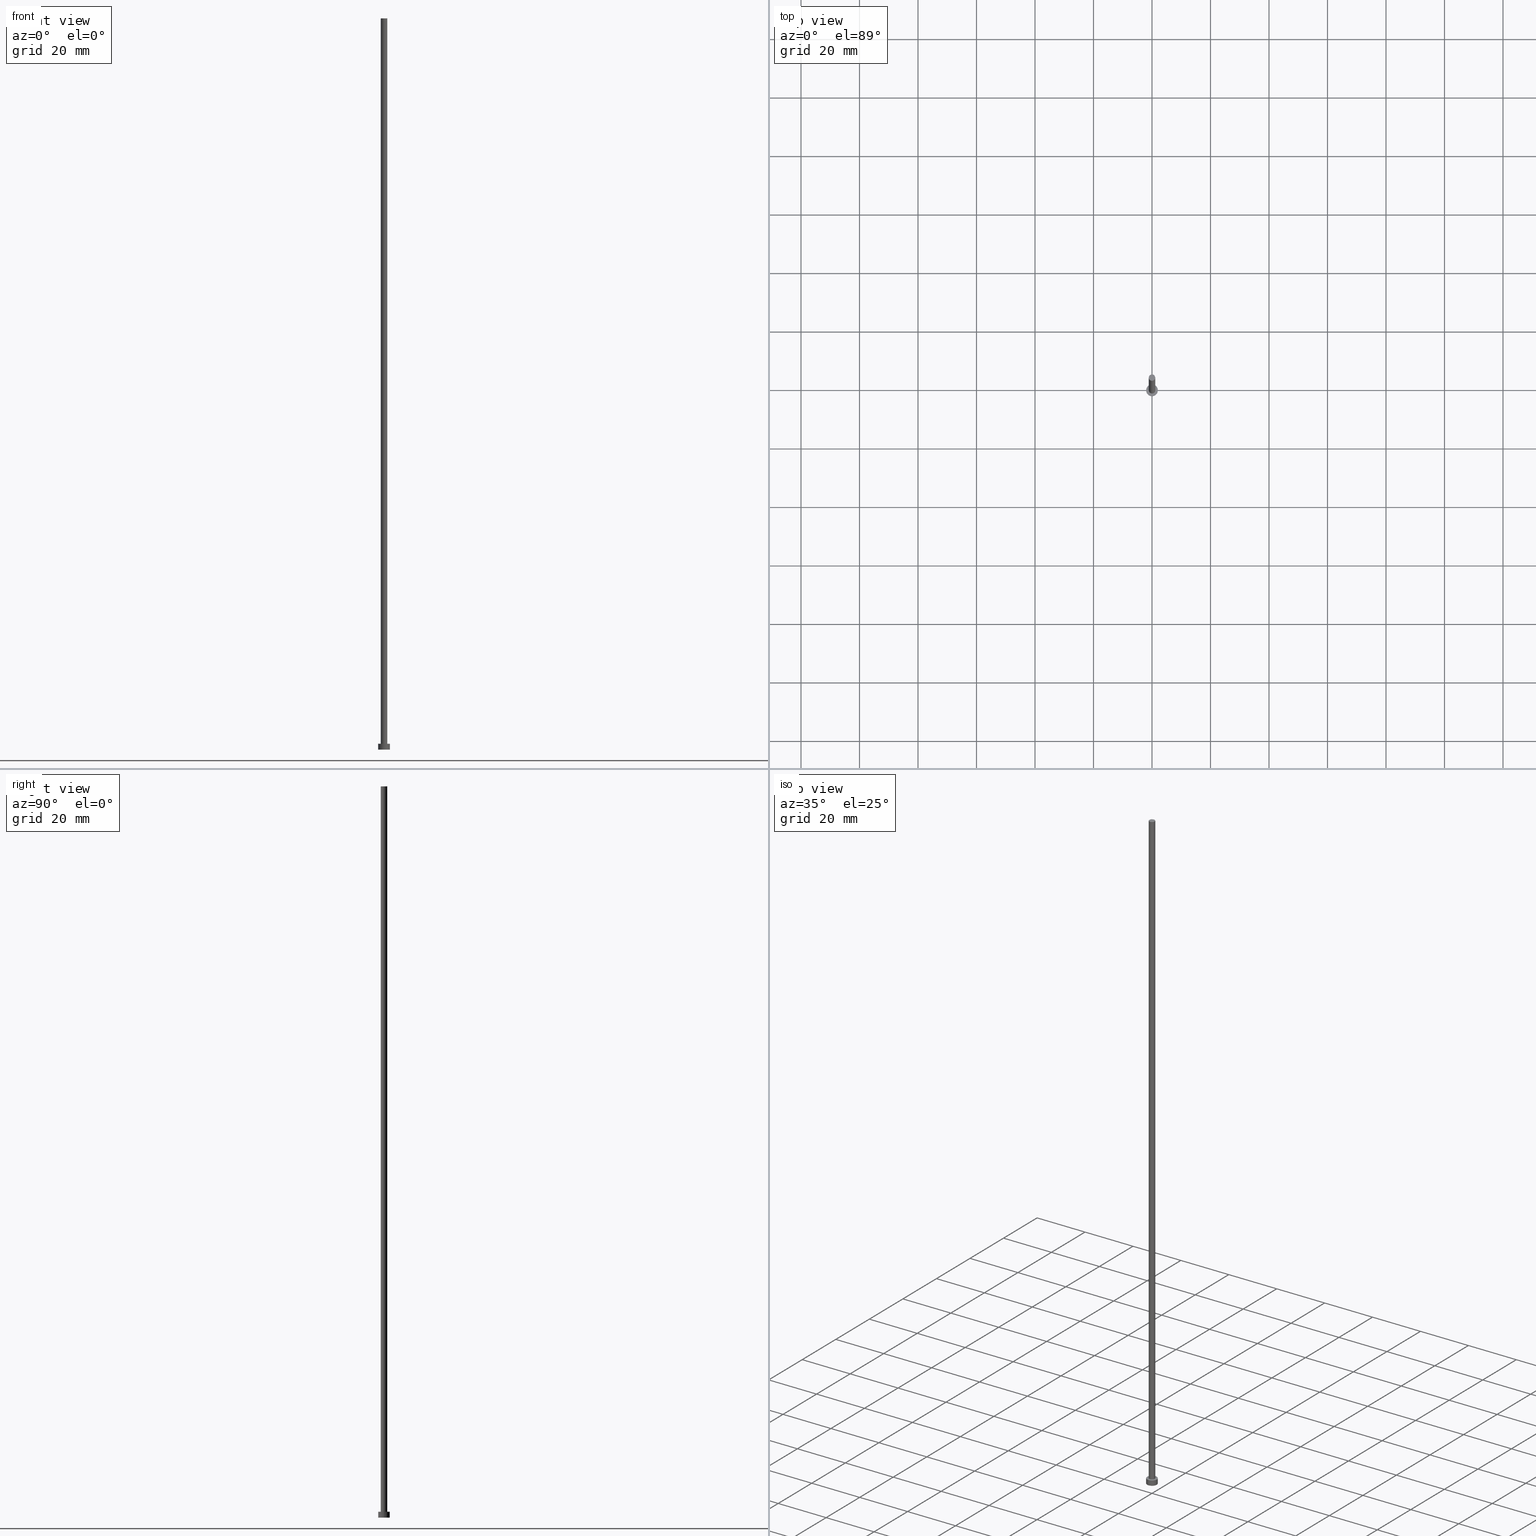
[diagram: canonical four-view strip — front | top / right | iso, engineering-drawing reading convention]
A machine part, canonical four-view strip (front | top / right | iso — engineering-drawing reading convention). The complete STEP part file that produces these views, byte-faithful:
ISO-10303-21;
HEADER;
FILE_DESCRIPTION (( 'STEP AP203' ),
    '1' );
FILE_NAME ('8b87.STEP',
    '2023-02-12T12:21:49',
    ( '' ),
    ( '' ),
    'SwSTEP 2.0',
    'SolidWorks 2019',
    '' );
FILE_SCHEMA (( 'CONFIG_CONTROL_DESIGN' ));
ENDSEC;

DATA;
#1 = ORIENTED_EDGE ( 'NONE', *, *, #101, .F. ) ;
#2 = CIRCLE ( 'NONE', #180, 1.100000000000000089 ) ;
#3 = CC_DESIGN_PERSON_AND_ORGANIZATION_ASSIGNMENT ( #254, #59, ( #44 ) ) ;
#4 = APPROVAL_DATE_TIME ( #191, #166 ) ;
#5 = DIRECTION ( 'NONE',  ( -0.000000000000000000, -0.000000000000000000, -1.000000000000000000 ) ) ;
#6 = CYLINDRICAL_SURFACE ( 'NONE', #209, 1.100000000000000089 ) ;
#7 = AXIS2_PLACEMENT_3D ( 'NONE', #138, #176, #218 ) ;
#8 = FACE_BOUND ( 'NONE', #20, .T. ) ;
#9 = ADVANCED_FACE ( 'NONE', ( #22 ), #208, .T. ) ;
#10 = DIRECTION ( 'NONE',  ( 0.000000000000000000, 0.000000000000000000, 1.000000000000000000 ) ) ;
#11 = DIRECTION ( 'NONE',  ( -1.000000000000000000, 0.000000000000000000, 0.000000000000000000 ) ) ;
#12 = CARTESIAN_POINT ( 'NONE',  ( 0.000000000000000000, 0.000000000000000000, 0.000000000000000000 ) ) ;
#13 = APPROVAL_STATUS ( 'not_yet_approved' ) ;
#14 = COORDINATED_UNIVERSAL_TIME_OFFSET ( 1, 0, .AHEAD. ) ;
#15 = CC_DESIGN_PERSON_AND_ORGANIZATION_ASSIGNMENT ( #235, #50, ( #175 ) ) ;
#16 = DIRECTION ( 'NONE',  ( 0.000000000000000000, 0.000000000000000000, 1.000000000000000000 ) ) ;
#17 = AXIS2_PLACEMENT_3D ( 'NONE', #143, #99, #164 ) ;
#18 = MECHANICAL_CONTEXT ( 'NONE', #69, 'mechanical' ) ;
#19 = VERTEX_POINT ( 'NONE', #109 ) ;
#20 = EDGE_LOOP ( 'NONE', ( #106, #224 ) ) ;
#21 = EDGE_LOOP ( 'NONE', ( #87, #64, #128, #108 ) ) ;
#22 = FACE_OUTER_BOUND ( 'NONE', #41, .T. ) ;
#23 = CIRCLE ( 'NONE', #179, 2.000000000000000000 ) ;
#24 = DIRECTION ( 'NONE',  ( 1.000000000000000000, 0.000000000000000000, -0.000000000000000000 ) ) ;
#25 = AXIS2_PLACEMENT_3D ( 'NONE', #12, #233, #161 ) ;
#26 = DIRECTION ( 'NONE',  ( -0.000000000000000000, -0.000000000000000000, -1.000000000000000000 ) ) ;
#27 = CARTESIAN_POINT ( 'NONE',  ( 0.000000000000000000, 0.000000000000000000, 2.000000000000000000 ) ) ;
#28 = PERSON_AND_ORGANIZATION_ROLE ( 'classification_officer' ) ;
#29 = DIRECTION ( 'NONE',  ( -0.000000000000000000, -0.000000000000000000, -1.000000000000000000 ) ) ;
#30 = DIRECTION ( 'NONE',  ( 1.000000000000000000, 0.000000000000000000, -0.000000000000000000 ) ) ;
#31 = DIRECTION ( 'NONE',  ( 0.000000000000000000, 0.000000000000000000, 1.000000000000000000 ) ) ;
#32 = CARTESIAN_POINT ( 'NONE',  ( -1.100000000000000089, 0.000000000000000000, 2.000000000000000000 ) ) ;
#33 = APPROVAL_ROLE ( '' ) ;
#34 = DATE_AND_TIME ( #219, #56 ) ;
#35 = PERSON_AND_ORGANIZATION ( #184, #225 ) ;
#36 = AXIS2_PLACEMENT_3D ( 'NONE', #125, #223, #24 ) ;
#37 = COORDINATED_UNIVERSAL_TIME_OFFSET ( 1, 0, .AHEAD. ) ;
#38 = VERTEX_POINT ( 'NONE', #188 ) ;
#39 = VERTEX_POINT ( 'NONE', #111 ) ;
#40 = EDGE_CURVE ( 'NONE', #203, #19, #156, .T. ) ;
#41 = EDGE_LOOP ( 'NONE', ( #85, #130 ) ) ;
#42 = AXIS2_PLACEMENT_3D ( 'NONE', #153, #231, #97 ) ;
#43 = DIRECTION ( 'NONE',  ( 1.000000000000000000, 0.000000000000000000, 0.000000000000000000 ) ) ;
#44 = PRODUCT_DEFINITION_FORMATION_WITH_SPECIFIED_SOURCE ( 'LIBOVOLN�', '', #100, .NOT_KNOWN. ) ;
#45 = CARTESIAN_POINT ( 'NONE',  ( 0.000000000000000000, 0.000000000000000000, 2.000000000000000000 ) ) ;
#46 = DIRECTION ( 'NONE',  ( -0.000000000000000000, -0.000000000000000000, -1.000000000000000000 ) ) ;
#47 = COORDINATED_UNIVERSAL_TIME_OFFSET ( 1, 0, .AHEAD. ) ;
#48 = CARTESIAN_POINT ( 'NONE',  ( 0.000000000000000000, 0.000000000000000000, 250.0000000000000000 ) ) ;
#49 = CARTESIAN_POINT ( 'NONE',  ( 0.000000000000000000, 0.000000000000000000, 0.000000000000000000 ) ) ;
#50 = PERSON_AND_ORGANIZATION_ROLE ( 'creator' ) ;
#51 = VECTOR ( 'NONE', #66, 1000.000000000000000 ) ;
#52 = LOCAL_TIME ( 13, 21, 49.00000000000000000, #47 ) ;
#53 = DIRECTION ( 'NONE',  ( -1.000000000000000000, 0.000000000000000000, 0.000000000000000000 ) ) ;
#54 = VECTOR ( 'NONE', #5, 1000.000000000000000 ) ;
#55 = ADVANCED_BREP_SHAPE_REPRESENTATION ( '8b87', ( #177, #25 ), #247 ) ;
#56 = LOCAL_TIME ( 13, 21, 49.00000000000000000, #139 ) ;
#57 = EDGE_CURVE ( 'NONE', #203, #151, #189, .T. ) ;
#58 = VERTEX_POINT ( 'NONE', #118 ) ;
#59 = PERSON_AND_ORGANIZATION_ROLE ( 'design_supplier' ) ;
#60 = EDGE_LOOP ( 'NONE', ( #227, #255, #237, #187 ) ) ;
#61 = APPROVAL_PERSON_ORGANIZATION ( #78, #250, #33 ) ;
#62 = EDGE_CURVE ( 'NONE', #151, #203, #221, .T. ) ;
#63 = ORIENTED_EDGE ( 'NONE', *, *, #252, .T. ) ;
#64 = ORIENTED_EDGE ( 'NONE', *, *, #212, .F. ) ;
#65 = SECURITY_CLASSIFICATION_LEVEL ( 'unclassified' ) ;
#66 = DIRECTION ( 'NONE',  ( -0.000000000000000000, -0.000000000000000000, -1.000000000000000000 ) ) ;
#67 = VECTOR ( 'NONE', #26, 1000.000000000000000 ) ;
#68 = CALENDAR_DATE ( 2023, 12, 2 ) ;
#69 = APPLICATION_CONTEXT ( 'configuration controlled 3d designs of mechanical parts and assemblies' ) ;
#70 = CARTESIAN_POINT ( 'NONE',  ( 0.000000000000000000, 0.000000000000000000, 250.0000000000000000 ) ) ;
#71 = LOCAL_TIME ( 13, 21, 49.00000000000000000, #171 ) ;
#72 = EDGE_CURVE ( 'NONE', #84, #238, #113, .T. ) ;
#73 = PERSON_AND_ORGANIZATION ( #184, #225 ) ;
#74 = CARTESIAN_POINT ( 'NONE',  ( -1.100000000000000089, 0.000000000000000000, 250.0000000000000000 ) ) ;
#75 = CARTESIAN_POINT ( 'NONE',  ( 0.000000000000000000, 0.000000000000000000, 2.000000000000000000 ) ) ;
#76 = DIRECTION ( 'NONE',  ( 0.000000000000000000, 0.000000000000000000, 1.000000000000000000 ) ) ;
#77 = EDGE_CURVE ( 'NONE', #58, #39, #211, .T. ) ;
#78 = PERSON_AND_ORGANIZATION ( #184, #225 ) ;
#79 = SHAPE_DEFINITION_REPRESENTATION ( #196, #55 ) ;
#80 = APPROVAL_STATUS ( 'not_yet_approved' ) ;
#81 = EDGE_CURVE ( 'NONE', #19, #38, #23, .T. ) ;
#82 =( NAMED_UNIT ( * ) SI_UNIT ( $, .STERADIAN. ) SOLID_ANGLE_UNIT ( ) );
#83 = APPLICATION_CONTEXT ( 'configuration controlled 3d designs of mechanical parts and assemblies' ) ;
#84 = VERTEX_POINT ( 'NONE', #200 ) ;
#85 = ORIENTED_EDGE ( 'NONE', *, *, #212, .T. ) ;
#86 = APPROVAL ( #13, 'NEUR�EN�' ) ;
#87 = ORIENTED_EDGE ( 'NONE', *, *, #77, .F. ) ;
#88 = DIRECTION ( 'NONE',  ( 0.000000000000000000, 0.000000000000000000, 1.000000000000000000 ) ) ;
#89 = CC_DESIGN_PERSON_AND_ORGANIZATION_ASSIGNMENT ( #152, #253, ( #44 ) ) ;
#90 = APPROVAL_PERSON_ORGANIZATION ( #201, #86, #120 ) ;
#91 = DIRECTION ( 'NONE',  ( 1.000000000000000000, 0.000000000000000000, 0.000000000000000000 ) ) ;
#92 = PLANE ( 'NONE',  #210 ) ;
#93 = DESIGN_CONTEXT ( 'detailed design', #83, 'design' ) ;
#94 = CALENDAR_DATE ( 2023, 12, 2 ) ;
#95 = ADVANCED_FACE ( 'NONE', ( #114 ), #6, .T. ) ;
#96 = DIRECTION ( 'NONE',  ( -1.000000000000000000, 0.000000000000000000, 0.000000000000000000 ) ) ;
#97 = DIRECTION ( 'NONE',  ( 1.000000000000000000, 0.000000000000000000, 0.000000000000000000 ) ) ;
#98 = CALENDAR_DATE ( 2023, 12, 2 ) ;
#99 = DIRECTION ( 'NONE',  ( 0.000000000000000000, 0.000000000000000000, 1.000000000000000000 ) ) ;
#100 = PRODUCT ( '8b87', '8b87', '', ( #18 ) ) ;
#101 = EDGE_CURVE ( 'NONE', #151, #38, #243, .T. ) ;
#102 = CALENDAR_DATE ( 2023, 12, 2 ) ;
#103 = AXIS2_PLACEMENT_3D ( 'NONE', #48, #76, #137 ) ;
#104 = DATE_AND_TIME ( #98, #162 ) ;
#105 = ADVANCED_FACE ( 'NONE', ( #135 ), #245, .T. ) ;
#106 = ORIENTED_EDGE ( 'NONE', *, *, #122, .F. ) ;
#107 = ORIENTED_EDGE ( 'NONE', *, *, #81, .T. ) ;
#108 = ORIENTED_EDGE ( 'NONE', *, *, #122, .T. ) ;
#109 = CARTESIAN_POINT ( 'NONE',  ( -2.000000000000000000, 0.000000000000000000, 0.000000000000000000 ) ) ;
#110 = AXIS2_PLACEMENT_3D ( 'NONE', #45, #31, #230 ) ;
#111 = CARTESIAN_POINT ( 'NONE',  ( 1.100000000000000089, 1.347111479062088503E-16, 2.000000000000000000 ) ) ;
#112 = CC_DESIGN_DATE_AND_TIME_ASSIGNMENT ( #34, #119, ( #175 ) ) ;
#113 = LINE ( 'NONE', #74, #51 ) ;
#114 = FACE_OUTER_BOUND ( 'NONE', #168, .T. ) ;
#115 = CARTESIAN_POINT ( 'NONE',  ( 0.000000000000000000, 0.000000000000000000, 250.0000000000000000 ) ) ;
#116 = EDGE_CURVE ( 'NONE', #58, #84, #2, .T. ) ;
#117 = DATE_TIME_ROLE ( 'classification_date' ) ;
#118 = CARTESIAN_POINT ( 'NONE',  ( 1.100000000000000089, 1.347111479062088503E-16, 250.0000000000000000 ) ) ;
#119 = DATE_TIME_ROLE ( 'creation_date' ) ;
#120 = APPROVAL_ROLE ( '' ) ;
#121 = PLANE ( 'NONE',  #17 ) ;
#122 = EDGE_CURVE ( 'NONE', #238, #39, #131, .T. ) ;
#123 = AXIS2_PLACEMENT_3D ( 'NONE', #145, #16, #124 ) ;
#124 = DIRECTION ( 'NONE',  ( 1.000000000000000000, 0.000000000000000000, 0.000000000000000000 ) ) ;
#125 = CARTESIAN_POINT ( 'NONE',  ( 0.000000000000000000, 0.000000000000000000, 250.0000000000000000 ) ) ;
#126 = CC_DESIGN_APPROVAL ( #166, ( #150 ) ) ;
#127 = CIRCLE ( 'NONE', #7, 2.000000000000000000 ) ;
#128 = ORIENTED_EDGE ( 'NONE', *, *, #72, .T. ) ;
#129 = ORIENTED_EDGE ( 'NONE', *, *, #40, .T. ) ;
#130 = ORIENTED_EDGE ( 'NONE', *, *, #116, .T. ) ;
#131 = CIRCLE ( 'NONE', #42, 1.100000000000000089 ) ;
#132 = DIRECTION ( 'NONE',  ( -0.000000000000000000, -0.000000000000000000, -1.000000000000000000 ) ) ;
#133 = CC_DESIGN_APPROVAL ( #86, ( #44 ) ) ;
#134 = DIRECTION ( 'NONE',  ( 1.000000000000000000, 0.000000000000000000, 0.000000000000000000 ) ) ;
#135 = FACE_OUTER_BOUND ( 'NONE', #21, .T. ) ;
#136 = DATE_AND_TIME ( #68, #52 ) ;
#137 = DIRECTION ( 'NONE',  ( 1.000000000000000000, 0.000000000000000000, 0.000000000000000000 ) ) ;
#138 = CARTESIAN_POINT ( 'NONE',  ( 0.000000000000000000, 0.000000000000000000, 0.000000000000000000 ) ) ;
#139 = COORDINATED_UNIVERSAL_TIME_OFFSET ( 1, 0, .AHEAD. ) ;
#140 = CC_DESIGN_PERSON_AND_ORGANIZATION_ASSIGNMENT ( #35, #222, ( #100 ) ) ;
#141 =( LENGTH_UNIT ( ) NAMED_UNIT ( * ) SI_UNIT ( .MILLI., .METRE. ) );
#142 = CC_DESIGN_SECURITY_CLASSIFICATION ( #150, ( #44 ) ) ;
#143 = CARTESIAN_POINT ( 'NONE',  ( 0.000000000000000000, 0.000000000000000000, 0.000000000000000000 ) ) ;
#144 = PRODUCT_RELATED_PRODUCT_CATEGORY ( 'detail', '', ( #100 ) ) ;
#145 = CARTESIAN_POINT ( 'NONE',  ( 0.000000000000000000, 0.000000000000000000, 2.000000000000000000 ) ) ;
#146 = VECTOR ( 'NONE', #46, 1000.000000000000000 ) ;
#147 = ORIENTED_EDGE ( 'NONE', *, *, #81, .F. ) ;
#148 = EDGE_LOOP ( 'NONE', ( #205, #165 ) ) ;
#149 = CIRCLE ( 'NONE', #103, 1.100000000000000089 ) ;
#150 = SECURITY_CLASSIFICATION ( '', '', #65 ) ;
#151 = VERTEX_POINT ( 'NONE', #195 ) ;
#152 = PERSON_AND_ORGANIZATION ( #184, #225 ) ;
#153 = CARTESIAN_POINT ( 'NONE',  ( 0.000000000000000000, 0.000000000000000000, 2.000000000000000000 ) ) ;
#154 = CARTESIAN_POINT ( 'NONE',  ( 0.000000000000000000, 0.000000000000000000, 2.000000000000000000 ) ) ;
#155 = APPROVAL_ROLE ( '' ) ;
#156 = LINE ( 'NONE', #193, #67 ) ;
#157 = FACE_OUTER_BOUND ( 'NONE', #148, .T. ) ;
#158 = CLOSED_SHELL ( 'NONE', ( #95, #185, #220, #163, #229, #105, #9 ) ) ;
#159 = CYLINDRICAL_SURFACE ( 'NONE', #239, 2.000000000000000000 ) ;
#160 = APPROVAL_DATE_TIME ( #104, #250 ) ;
#161 = DIRECTION ( 'NONE',  ( 1.000000000000000000, 0.000000000000000000, 0.000000000000000000 ) ) ;
#162 = LOCAL_TIME ( 13, 21, 49.00000000000000000, #37 ) ;
#163 = ADVANCED_FACE ( 'NONE', ( #8, #157 ), #92, .T. ) ;
#164 = DIRECTION ( 'NONE',  ( 1.000000000000000000, 0.000000000000000000, -0.000000000000000000 ) ) ;
#165 = ORIENTED_EDGE ( 'NONE', *, *, #62, .T. ) ;
#166 = APPROVAL ( #197, 'NEUR�EN�' ) ;
#167 = EDGE_LOOP ( 'NONE', ( #1, #226, #129, #107 ) ) ;
#168 = EDGE_LOOP ( 'NONE', ( #241, #204, #63, #240 ) ) ;
#169 = CIRCLE ( 'NONE', #123, 1.100000000000000089 ) ;
#170 = EDGE_LOOP ( 'NONE', ( #147, #207 ) ) ;
#171 = COORDINATED_UNIVERSAL_TIME_OFFSET ( 1, 0, .AHEAD. ) ;
#172 = CARTESIAN_POINT ( 'NONE',  ( 2.000000000000000000, 2.449293598294706414E-16, 2.000000000000000000 ) ) ;
#173 = LOCAL_TIME ( 13, 21, 49.00000000000000000, #14 ) ;
#174 = DIRECTION ( 'NONE',  ( -1.000000000000000000, 0.000000000000000000, 0.000000000000000000 ) ) ;
#175 = PRODUCT_DEFINITION ( 'NEZN�M�', '', #44, #93 ) ;
#176 = DIRECTION ( 'NONE',  ( 0.000000000000000000, 0.000000000000000000, 1.000000000000000000 ) ) ;
#177 = MANIFOLD_SOLID_BREP ( 'P�idat vysunut�m3', #158 ) ;
#178 = FACE_OUTER_BOUND ( 'NONE', #167, .T. ) ;
#179 = AXIS2_PLACEMENT_3D ( 'NONE', #49, #181, #91 ) ;
#180 = AXIS2_PLACEMENT_3D ( 'NONE', #115, #88, #43 ) ;
#181 = DIRECTION ( 'NONE',  ( 0.000000000000000000, 0.000000000000000000, 1.000000000000000000 ) ) ;
#182 = DATE_AND_TIME ( #102, #173 ) ;
#183 = APPLICATION_PROTOCOL_DEFINITION ( 'international standard', 'config_control_design', 1994, #69 ) ;
#184 = PERSON ( 'NEUR�EN�', 'NEUR�EN�', 'NEUR�EN�', ('NEUR�EN�'), ('NEUR�EN�'), ('NEUR�EN�') ) ;
#185 = ADVANCED_FACE ( 'NONE', ( #228 ), #242, .T. ) ;
#186 = APPROVAL_PERSON_ORGANIZATION ( #73, #166, #155 ) ;
#187 = ORIENTED_EDGE ( 'NONE', *, *, #40, .F. ) ;
#188 = CARTESIAN_POINT ( 'NONE',  ( 2.000000000000000000, 2.449293598294706414E-16, 0.000000000000000000 ) ) ;
#189 = CIRCLE ( 'NONE', #110, 2.000000000000000000 ) ;
#190 = AXIS2_PLACEMENT_3D ( 'NONE', #215, #29, #11 ) ;
#191 = DATE_AND_TIME ( #94, #71 ) ;
#192 = DIRECTION ( 'NONE',  ( 0.000000000000000000, 0.000000000000000000, 1.000000000000000000 ) ) ;
#193 = CARTESIAN_POINT ( 'NONE',  ( -2.000000000000000000, 0.000000000000000000, 2.000000000000000000 ) ) ;
#194 = EDGE_CURVE ( 'NONE', #38, #19, #127, .T. ) ;
#195 = CARTESIAN_POINT ( 'NONE',  ( 2.000000000000000000, 2.449293598294706414E-16, 2.000000000000000000 ) ) ;
#196 = PRODUCT_DEFINITION_SHAPE ( 'NONE', 'NONE',  #175 ) ;
#197 = APPROVAL_STATUS ( 'not_yet_approved' ) ;
#198 = DIRECTION ( 'NONE',  ( -0.000000000000000000, -0.000000000000000000, -1.000000000000000000 ) ) ;
#199 = CC_DESIGN_DATE_AND_TIME_ASSIGNMENT ( #136, #117, ( #150 ) ) ;
#200 = CARTESIAN_POINT ( 'NONE',  ( -1.100000000000000089, 0.000000000000000000, 250.0000000000000000 ) ) ;
#201 = PERSON_AND_ORGANIZATION ( #184, #225 ) ;
#202 = APPLICATION_PROTOCOL_DEFINITION ( 'international standard', 'config_control_design', 1994, #83 ) ;
#203 = VERTEX_POINT ( 'NONE', #244 ) ;
#204 = ORIENTED_EDGE ( 'NONE', *, *, #77, .T. ) ;
#205 = ORIENTED_EDGE ( 'NONE', *, *, #57, .T. ) ;
#206 = CC_DESIGN_PERSON_AND_ORGANIZATION_ASSIGNMENT ( #214, #28, ( #150 ) ) ;
#207 = ORIENTED_EDGE ( 'NONE', *, *, #194, .F. ) ;
#208 = PLANE ( 'NONE',  #36 ) ;
#209 = AXIS2_PLACEMENT_3D ( 'NONE', #70, #132, #174 ) ;
#210 = AXIS2_PLACEMENT_3D ( 'NONE', #75, #10, #30 ) ;
#211 = LINE ( 'NONE', #213, #146 ) ;
#212 = EDGE_CURVE ( 'NONE', #84, #58, #149, .T. ) ;
#213 = CARTESIAN_POINT ( 'NONE',  ( 1.100000000000000089, 1.347111479062088503E-16, 250.0000000000000000 ) ) ;
#214 = PERSON_AND_ORGANIZATION ( #184, #225 ) ;
#215 = CARTESIAN_POINT ( 'NONE',  ( 0.000000000000000000, 0.000000000000000000, 250.0000000000000000 ) ) ;
#216 = AXIS2_PLACEMENT_3D ( 'NONE', #154, #198, #96 ) ;
#217 = UNCERTAINTY_MEASURE_WITH_UNIT (LENGTH_MEASURE( 1.000000000000000082E-05 ), #141, 'distance_accuracy_value', 'NONE');
#218 = DIRECTION ( 'NONE',  ( 1.000000000000000000, 0.000000000000000000, 0.000000000000000000 ) ) ;
#219 = CALENDAR_DATE ( 2023, 12, 2 ) ;
#220 = ADVANCED_FACE ( 'NONE', ( #178 ), #159, .T. ) ;
#221 = CIRCLE ( 'NONE', #246, 2.000000000000000000 ) ;
#222 = PERSON_AND_ORGANIZATION_ROLE ( 'design_owner' ) ;
#223 = DIRECTION ( 'NONE',  ( 0.000000000000000000, 0.000000000000000000, 1.000000000000000000 ) ) ;
#224 = ORIENTED_EDGE ( 'NONE', *, *, #252, .F. ) ;
#225 = ORGANIZATION ( 'NEUR�EN�', 'NEUR�EN�', '' ) ;
#226 = ORIENTED_EDGE ( 'NONE', *, *, #57, .F. ) ;
#227 = ORIENTED_EDGE ( 'NONE', *, *, #62, .F. ) ;
#228 = FACE_OUTER_BOUND ( 'NONE', #60, .T. ) ;
#229 = ADVANCED_FACE ( 'NONE', ( #236 ), #121, .F. ) ;
#230 = DIRECTION ( 'NONE',  ( 1.000000000000000000, 0.000000000000000000, 0.000000000000000000 ) ) ;
#231 = DIRECTION ( 'NONE',  ( 0.000000000000000000, 0.000000000000000000, 1.000000000000000000 ) ) ;
#232 = CARTESIAN_POINT ( 'NONE',  ( 0.000000000000000000, 0.000000000000000000, 2.000000000000000000 ) ) ;
#233 = DIRECTION ( 'NONE',  ( 0.000000000000000000, 0.000000000000000000, 1.000000000000000000 ) ) ;
#234 = CC_DESIGN_APPROVAL ( #250, ( #175 ) ) ;
#235 = PERSON_AND_ORGANIZATION ( #184, #225 ) ;
#236 = FACE_OUTER_BOUND ( 'NONE', #170, .T. ) ;
#237 = ORIENTED_EDGE ( 'NONE', *, *, #194, .T. ) ;
#238 = VERTEX_POINT ( 'NONE', #32 ) ;
#239 = AXIS2_PLACEMENT_3D ( 'NONE', #232, #251, #53 ) ;
#240 = ORIENTED_EDGE ( 'NONE', *, *, #72, .F. ) ;
#241 = ORIENTED_EDGE ( 'NONE', *, *, #116, .F. ) ;
#242 = CYLINDRICAL_SURFACE ( 'NONE', #216, 2.000000000000000000 ) ;
#243 = LINE ( 'NONE', #172, #54 ) ;
#244 = CARTESIAN_POINT ( 'NONE',  ( -2.000000000000000000, 0.000000000000000000, 2.000000000000000000 ) ) ;
#245 = CYLINDRICAL_SURFACE ( 'NONE', #190, 1.100000000000000089 ) ;
#246 = AXIS2_PLACEMENT_3D ( 'NONE', #27, #192, #134 ) ;
#247 =( GEOMETRIC_REPRESENTATION_CONTEXT ( 3 ) GLOBAL_UNCERTAINTY_ASSIGNED_CONTEXT ( ( #217 ) ) GLOBAL_UNIT_ASSIGNED_CONTEXT ( ( #141, #248, #82 ) ) REPRESENTATION_CONTEXT ( 'NONE', 'WORKASPACE' ) );
#248 =( NAMED_UNIT ( * ) PLANE_ANGLE_UNIT ( ) SI_UNIT ( $, .RADIAN. ) );
#249 = APPROVAL_DATE_TIME ( #182, #86 ) ;
#250 = APPROVAL ( #80, 'NEUR�EN�' ) ;
#251 = DIRECTION ( 'NONE',  ( -0.000000000000000000, -0.000000000000000000, -1.000000000000000000 ) ) ;
#252 = EDGE_CURVE ( 'NONE', #39, #238, #169, .T. ) ;
#253 = PERSON_AND_ORGANIZATION_ROLE ( 'creator' ) ;
#254 = PERSON_AND_ORGANIZATION ( #184, #225 ) ;
#255 = ORIENTED_EDGE ( 'NONE', *, *, #101, .T. ) ;
ENDSEC;
END-ISO-10303-21;
